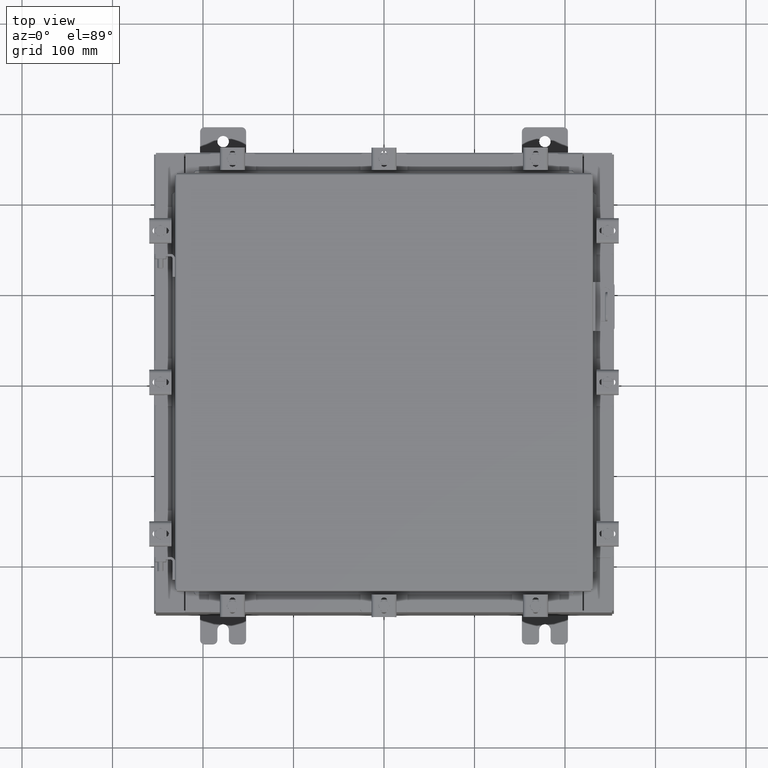
[diagram: clean part render]
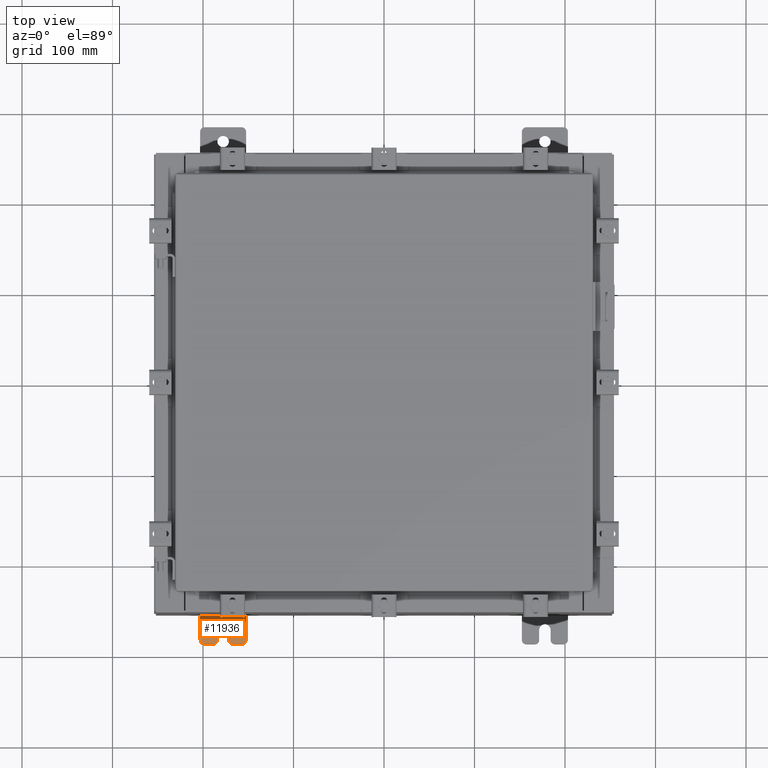
[diagram: same view with one face highlighted and labeled with its STEP entity id]
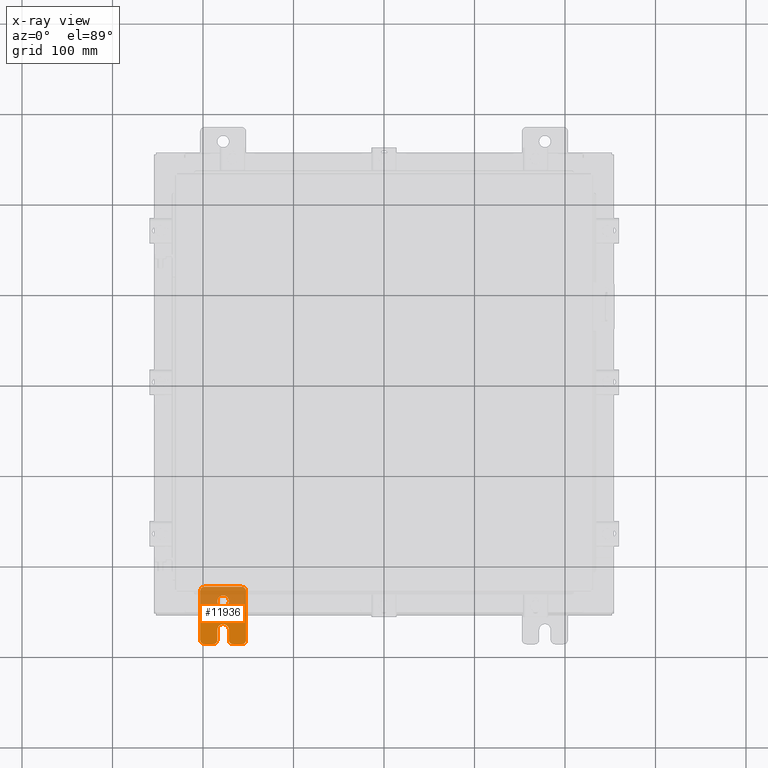
[diagram: x-ray of the same camera — body ghosted, the highlighted face saturated]
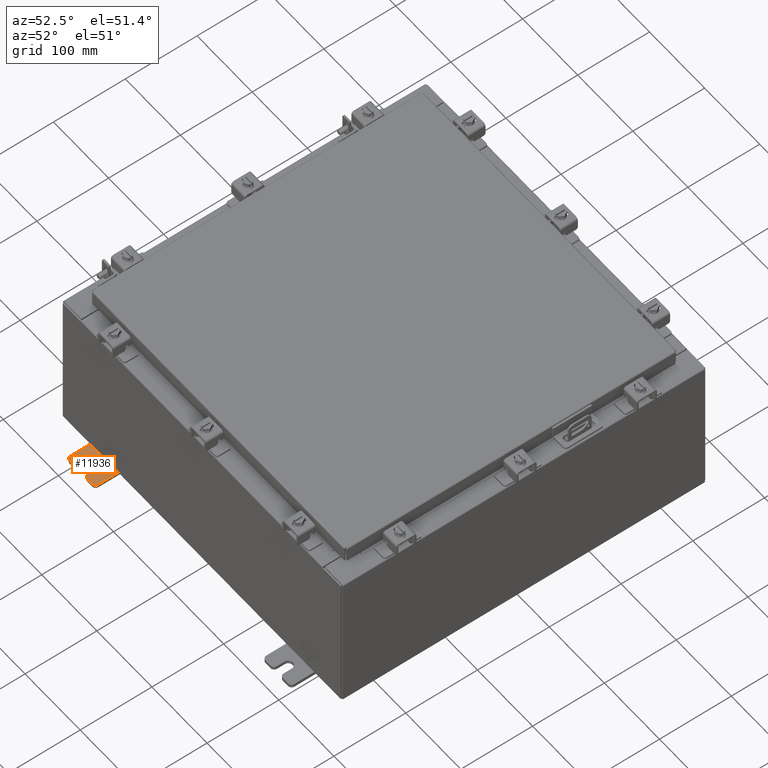
[diagram: same view with one face highlighted and labeled with its STEP entity id]
A machine part, top view. The second image highlights one B-rep face of the part: STEP entity #11936.
The next image is the same camera in x-ray: the body ghosted, the highlighted face saturated — about 53% of this face is hidden behind the body in this view.
A second angle (auxiliary view) of the same face is appended — the face is thin or edge-on in the first view.
In plain terms, the highlighted planar face has unit normal (0, 0, 1).
Its self-contained STEP definition (entity closure, byte-faithful):
#256 = CARTESIAN_POINT ( 'NONE',  ( 0.0000000000000000000, 1.059999999999993600, -0.8100000000000089400 ) ) ;
#440 = EDGE_CURVE ( 'NONE', #19401, #4421, #21015, .T. ) ;
#520 = ORIENTED_EDGE ( 'NONE', *, *, #21213, .T. ) ;
#533 = EDGE_LOOP ( 'NONE', ( #21992, #18373 ) ) ;
#767 = CARTESIAN_POINT ( 'NONE',  ( 0.0000000000000000000, -1.250000000000002400, 0.8099999999999980500 ) ) ;
#805 = DIRECTION ( 'NONE',  ( 0.0000000000000000000, -1.639108796198553600E-015, -1.000000000000000000 ) ) ;
#867 = VECTOR ( 'NONE', #16604, 39.37007874015748100 ) ;
#1270 = DIRECTION ( 'NONE',  ( -0.0000000000000000000, 0.0000000000000000000, -1.000000000000000000 ) ) ;
#1684 = ORIENTED_EDGE ( 'NONE', *, *, #21693, .T. ) ;
#1686 = EDGE_CURVE ( 'NONE', #14195, #6374, #3886, .T. ) ;
#1815 = CARTESIAN_POINT ( 'NONE',  ( 0.0000000000000000000, -1.060000000000001600, 0.8099999999999978300 ) ) ;
#1843 = CARTESIAN_POINT ( 'NONE',  ( 0.0000000000000000000, 1.249999999999994200, -1.000000000000010400 ) ) ;
#1905 = EDGE_CURVE ( 'NONE', #20243, #2643, #18606, .T. ) ;
#1925 = DIRECTION ( 'NONE',  ( 0.0000000000000000000, 1.639108796198553600E-015, 1.000000000000000000 ) ) ;
#1950 = CARTESIAN_POINT ( 'NONE',  ( 4.168508244714285900E-016, 0.6249999999999992200, 0.2499999999999999200 ) ) ;
#1985 = CIRCLE ( 'NONE', #16879, 0.1900000000000011100 ) ;
#1996 = DIRECTION ( 'NONE',  ( 0.0000000000000000000, 0.0000000000000000000, -1.000000000000000000 ) ) ;
#2019 = DIRECTION ( 'NONE',  ( -5.163192708025533800E-017, 0.0000000000000000000, -1.000000000000000000 ) ) ;
#2043 = CARTESIAN_POINT ( 'NONE',  ( 6.829619984160658000E-017, -1.250000000000003800, 0.2500000000000005000 ) ) ;
#2048 = CARTESIAN_POINT ( 'NONE',  ( 0.0000000000000000000, -1.250000000000004700, -0.4400000000000002200 ) ) ;
#2092 = CARTESIAN_POINT ( 'NONE',  ( 4.039428427013647300E-016, 0.6249999999999992200, -9.783840404509077400E-018 ) ) ;
#2217 = EDGE_CURVE ( 'NONE', #6374, #13868, #17229, .T. ) ;
#2251 = VERTEX_POINT ( 'NONE', #2048 ) ;
#2300 = DIRECTION ( 'NONE',  ( 1.000000000000000000, 0.0000000000000000000, -0.0000000000000000000 ) ) ;
#2331 = CIRCLE ( 'NONE', #12474, 0.1900000000000011400 ) ;
#2353 = ORIENTED_EDGE ( 'NONE', *, *, #16005, .T. ) ;
#2643 = VERTEX_POINT ( 'NONE', #1950 ) ;
#2690 = VERTEX_POINT ( 'NONE', #20920 ) ;
#2717 = DIRECTION ( 'NONE',  ( 0.0000000000000000000, 0.0000000000000000000, -1.000000000000000000 ) ) ;
#2828 = EDGE_CURVE ( 'NONE', #2643, #20243, #20722, .T. ) ;
#3310 = VECTOR ( 'NONE', #7489, 39.37007874015748100 ) ;
#3587 = DIRECTION ( 'NONE',  ( 0.0000000000000000000, 0.0000000000000000000, -1.000000000000000000 ) ) ;
#3597 = VERTEX_POINT ( 'NONE', #15763 ) ;
#3886 = CIRCLE ( 'NONE', #12569, 0.1900000000000011100 ) ;
#4003 = EDGE_CURVE ( 'NONE', #7118, #3597, #6261, .T. ) ;
#4006 = DIRECTION ( 'NONE',  ( -6.523827964459551700E-016, -1.000000000000000000, 0.0000000000000000000 ) ) ;
#4053 = DIRECTION ( 'NONE',  ( -1.000000000000000000, 6.523827964459549700E-016, 5.163192708025532000E-017 ) ) ;
#4246 = CARTESIAN_POINT ( 'NONE',  ( 1.928684683526964400E-016, -1.060000000000003400, -0.2499999999999994400 ) ) ;
#4294 = AXIS2_PLACEMENT_3D ( 'NONE', #5044, #17242, #6789 ) ;
#4421 = VERTEX_POINT ( 'NONE', #13127 ) ;
#4492 = DIRECTION ( 'NONE',  ( 1.000000000000000000, 0.0000000000000000000, -0.0000000000000000000 ) ) ;
#4514 = CARTESIAN_POINT ( 'NONE',  ( 0.0000000000000000000, -1.060000000000004100, -0.8100000000000050500 ) ) ;
#4603 = CARTESIAN_POINT ( 'NONE',  ( 0.0000000000000000000, 1.059999999999993400, -1.000000000000010000 ) ) ;
#5044 = CARTESIAN_POINT ( 'NONE',  ( 0.0000000000000000000, 1.059999999999996300, 0.8099999999999938400 ) ) ;
#5483 = VERTEX_POINT ( 'NONE', #16165 ) ;
#5530 = ORIENTED_EDGE ( 'NONE', *, *, #440, .T. ) ;
#5532 = LINE ( 'NONE', #14926, #867 ) ;
#5684 = ORIENTED_EDGE ( 'NONE', *, *, #20322, .T. ) ;
#6229 = EDGE_LOOP ( 'NONE', ( #2353, #21789, #5530, #19497, #5684, #18853, #8408, #22145, #520, #7390, #12175, #1684, #10757, #15534 ) ) ;
#6261 = CIRCLE ( 'NONE', #21759, 0.2499999999999999200 ) ;
#6374 = VERTEX_POINT ( 'NONE', #21866 ) ;
#6789 = DIRECTION ( 'NONE',  ( 0.0000000000000000000, 0.0000000000000000000, -1.000000000000000000 ) ) ;
#6801 = FACE_BOUND ( 'NONE', #533, .T. ) ;
#7006 = DIRECTION ( 'NONE',  ( 1.000000000000000000, 0.0000000000000000000, -0.0000000000000000000 ) ) ;
#7029 = DIRECTION ( 'NONE',  ( 1.000000000000000000, -0.0000000000000000000, -5.163192708025532000E-017 ) ) ;
#7118 = VERTEX_POINT ( 'NONE', #11155 ) ;
#7390 = ORIENTED_EDGE ( 'NONE', *, *, #1686, .T. ) ;
#7464 = CARTESIAN_POINT ( 'NONE',  ( 0.0000000000000000000, 1.249999999999994700, -0.8100000000000092700 ) ) ;
#7489 = DIRECTION ( 'NONE',  ( 0.0000000000000000000, 1.000000000000000000, -1.639108796198558100E-015 ) ) ;
#7694 = EDGE_CURVE ( 'NONE', #16989, #2251, #17564, .T. ) ;
#8227 = CARTESIAN_POINT ( 'NONE',  ( 0.0000000000000000000, 0.0000000000000000000, 0.0000000000000000000 ) ) ;
#8408 = ORIENTED_EDGE ( 'NONE', *, *, #9260, .T. ) ;
#8597 = AXIS2_PLACEMENT_3D ( 'NONE', #19226, #7029, #17491 ) ;
#9260 = EDGE_CURVE ( 'NONE', #3597, #16989, #5532, .T. ) ;
#10663 = CARTESIAN_POINT ( 'NONE',  ( 0.0000000000000000000, -1.250000000000002200, 0.9999999999999992200 ) ) ;
#10738 = DIRECTION ( 'NONE',  ( 0.0000000000000000000, -1.639108796198553600E-015, -1.000000000000000000 ) ) ;
#10757 = ORIENTED_EDGE ( 'NONE', *, *, #21684, .T. ) ;
#11155 = CARTESIAN_POINT ( 'NONE',  ( 0.0000000000000000000, -0.6249999999999992200, 0.2500000000000005000 ) ) ;
#11575 = PLANE ( 'NONE',  #20591 ) ;
#11733 = DIRECTION ( 'NONE',  ( 1.000000000000000000, 0.0000000000000000000, -0.0000000000000000000 ) ) ;
#11936 = ADVANCED_FACE ( 'NONE', ( #6801, #16092 ), #11575, .T. ) ;
#11974 = DIRECTION ( 'NONE',  ( 0.0000000000000000000, -1.000000000000000000, 1.639108796198558100E-015 ) ) ;
#12175 = ORIENTED_EDGE ( 'NONE', *, *, #2217, .T. ) ;
#12254 = VERTEX_POINT ( 'NONE', #7464 ) ;
#12376 = VECTOR ( 'NONE', #11974, 39.37007874015748100 ) ;
#12465 = DIRECTION ( 'NONE',  ( 1.000000000000000000, 0.0000000000000000000, -0.0000000000000000000 ) ) ;
#12474 = AXIS2_PLACEMENT_3D ( 'NONE', #17473, #7006, #19209 ) ;
#12569 = AXIS2_PLACEMENT_3D ( 'NONE', #4514, #2300, #12756 ) ;
#12756 = DIRECTION ( 'NONE',  ( 0.0000000000000000000, 0.0000000000000000000, -1.000000000000000000 ) ) ;
#13127 = CARTESIAN_POINT ( 'NONE',  ( 0.0000000000000000000, -1.250000000000003100, 0.4400000000000020000 ) ) ;
#13512 = LINE ( 'NONE', #2043, #18170 ) ;
#13739 = CIRCLE ( 'NONE', #13809, 0.1900000000000011100 ) ;
#13809 = AXIS2_PLACEMENT_3D ( 'NONE', #256, #12465, #1996 ) ;
#13868 = VERTEX_POINT ( 'NONE', #4603 ) ;
#14042 = DIRECTION ( 'NONE',  ( 1.000000000000000000, 0.0000000000000000000, -0.0000000000000000000 ) ) ;
#14122 = CARTESIAN_POINT ( 'NONE',  ( 3.910348609313009100E-016, 0.6249999999999992200, -0.2499999999999999200 ) ) ;
#14195 = VERTEX_POINT ( 'NONE', #15877 ) ;
#14244 = AXIS2_PLACEMENT_3D ( 'NONE', #16683, #4492, #2717 ) ;
#14292 = LINE ( 'NONE', #1843, #18386 ) ;
#14329 = AXIS2_PLACEMENT_3D ( 'NONE', #2092, #21225, #2019 ) ;
#14926 = CARTESIAN_POINT ( 'NONE',  ( 4.780733988912460100E-016, -0.6249999999999993300, -0.2499999999999993900 ) ) ;
#15534 = ORIENTED_EDGE ( 'NONE', *, *, #20081, .T. ) ;
#15667 = CARTESIAN_POINT ( 'NONE',  ( 4.780733988912460100E-016, -0.6249999999999993300, 5.858939755051854500E-017 ) ) ;
#15763 = CARTESIAN_POINT ( 'NONE',  ( 4.780733988912460100E-016, -0.6249999999999993300, -0.2499999999999998600 ) ) ;
#15877 = CARTESIAN_POINT ( 'NONE',  ( 0.0000000000000000000, -1.250000000000005300, -0.8100000000000047200 ) ) ;
#16005 = EDGE_CURVE ( 'NONE', #21327, #5483, #22160, .T. ) ;
#16092 = FACE_OUTER_BOUND ( 'NONE', #6229, .T. ) ;
#16124 = EDGE_CURVE ( 'NONE', #5483, #19401, #1985, .T. ) ;
#16143 = CARTESIAN_POINT ( 'NONE',  ( 0.0000000000000000000, 1.249999999999997300, 0.8099999999999935000 ) ) ;
#16165 = CARTESIAN_POINT ( 'NONE',  ( 0.0000000000000000000, -1.060000000000001200, 0.9999999999999988900 ) ) ;
#16219 = VECTOR ( 'NONE', #805, 39.37007874015748100 ) ;
#16423 = VECTOR ( 'NONE', #10738, 39.37007874015748100 ) ;
#16604 = DIRECTION ( 'NONE',  ( -6.556435184794182400E-016, -1.000000000000000000, -1.639108796198545600E-016 ) ) ;
#16683 = CARTESIAN_POINT ( 'NONE',  ( 0.0000000000000000000, -1.060000000000003400, -0.4400000000000005000 ) ) ;
#16759 = LINE ( 'NONE', #21689, #16219 ) ;
#16851 = VERTEX_POINT ( 'NONE', #16143 ) ;
#16879 = AXIS2_PLACEMENT_3D ( 'NONE', #1815, #14042, #3587 ) ;
#16989 = VERTEX_POINT ( 'NONE', #4246 ) ;
#17229 = LINE ( 'NONE', #18565, #3310 ) ;
#17242 = DIRECTION ( 'NONE',  ( 1.000000000000000000, 0.0000000000000000000, -0.0000000000000000000 ) ) ;
#17473 = CARTESIAN_POINT ( 'NONE',  ( 0.0000000000000000000, -1.060000000000002100, 0.4400000000000016700 ) ) ;
#17491 = DIRECTION ( 'NONE',  ( -5.163192708025533800E-017, 0.0000000000000000000, -1.000000000000000000 ) ) ;
#17564 = CIRCLE ( 'NONE', #14244, 0.1900000000000011100 ) ;
#18170 = VECTOR ( 'NONE', #21171, 39.37007874015748100 ) ;
#18373 = ORIENTED_EDGE ( 'NONE', *, *, #2828, .F. ) ;
#18386 = VECTOR ( 'NONE', #1925, 39.37007874015748100 ) ;
#18565 = CARTESIAN_POINT ( 'NONE',  ( 0.0000000000000000000, -1.250000000000005600, -1.000000000000006200 ) ) ;
#18606 = CIRCLE ( 'NONE', #8597, 0.2499999999999999200 ) ;
#18853 = ORIENTED_EDGE ( 'NONE', *, *, #4003, .T. ) ;
#19209 = DIRECTION ( 'NONE',  ( 0.0000000000000000000, 0.0000000000000000000, -1.000000000000000000 ) ) ;
#19226 = CARTESIAN_POINT ( 'NONE',  ( 4.039428427013647300E-016, 0.6249999999999992200, -9.783840404509077400E-018 ) ) ;
#19401 = VERTEX_POINT ( 'NONE', #767 ) ;
#19497 = ORIENTED_EDGE ( 'NONE', *, *, #20196, .T. ) ;
#20081 = EDGE_CURVE ( 'NONE', #16851, #21327, #21963, .T. ) ;
#20196 = EDGE_CURVE ( 'NONE', #4421, #2690, #2331, .T. ) ;
#20243 = VERTEX_POINT ( 'NONE', #14122 ) ;
#20322 = EDGE_CURVE ( 'NONE', #2690, #7118, #13512, .T. ) ;
#20591 = AXIS2_PLACEMENT_3D ( 'NONE', #8227, #11733, #1270 ) ;
#20722 = CIRCLE ( 'NONE', #14329, 0.2499999999999999200 ) ;
#20920 = CARTESIAN_POINT ( 'NONE',  ( 1.928684683526972300E-016, -1.060000000000002100, 0.2500000000000005000 ) ) ;
#21015 = LINE ( 'NONE', #10663, #16423 ) ;
#21171 = DIRECTION ( 'NONE',  ( 6.556435184794182400E-016, 1.000000000000000000, 0.0000000000000000000 ) ) ;
#21213 = EDGE_CURVE ( 'NONE', #2251, #14195, #16759, .T. ) ;
#21225 = DIRECTION ( 'NONE',  ( 1.000000000000000000, -0.0000000000000000000, -5.163192708025532000E-017 ) ) ;
#21327 = VERTEX_POINT ( 'NONE', #21840 ) ;
#21684 = EDGE_CURVE ( 'NONE', #12254, #16851, #14292, .T. ) ;
#21689 = CARTESIAN_POINT ( 'NONE',  ( 0.0000000000000000000, -1.250000000000002200, 0.9999999999999992200 ) ) ;
#21693 = EDGE_CURVE ( 'NONE', #13868, #12254, #13739, .T. ) ;
#21759 = AXIS2_PLACEMENT_3D ( 'NONE', #15667, #4053, #4006 ) ;
#21789 = ORIENTED_EDGE ( 'NONE', *, *, #16124, .T. ) ;
#21840 = CARTESIAN_POINT ( 'NONE',  ( 0.0000000000000000000, 1.059999999999996500, 0.9999999999999953400 ) ) ;
#21866 = CARTESIAN_POINT ( 'NONE',  ( 0.0000000000000000000, -1.060000000000004500, -1.000000000000006400 ) ) ;
#21963 = CIRCLE ( 'NONE', #4294, 0.1900000000000011100 ) ;
#21992 = ORIENTED_EDGE ( 'NONE', *, *, #1905, .F. ) ;
#22145 = ORIENTED_EDGE ( 'NONE', *, *, #7694, .T. ) ;
#22160 = LINE ( 'NONE', #22399, #12376 ) ;
#22399 = CARTESIAN_POINT ( 'NONE',  ( 0.0000000000000000000, 1.249999999999997600, 0.9999999999999951200 ) ) ;